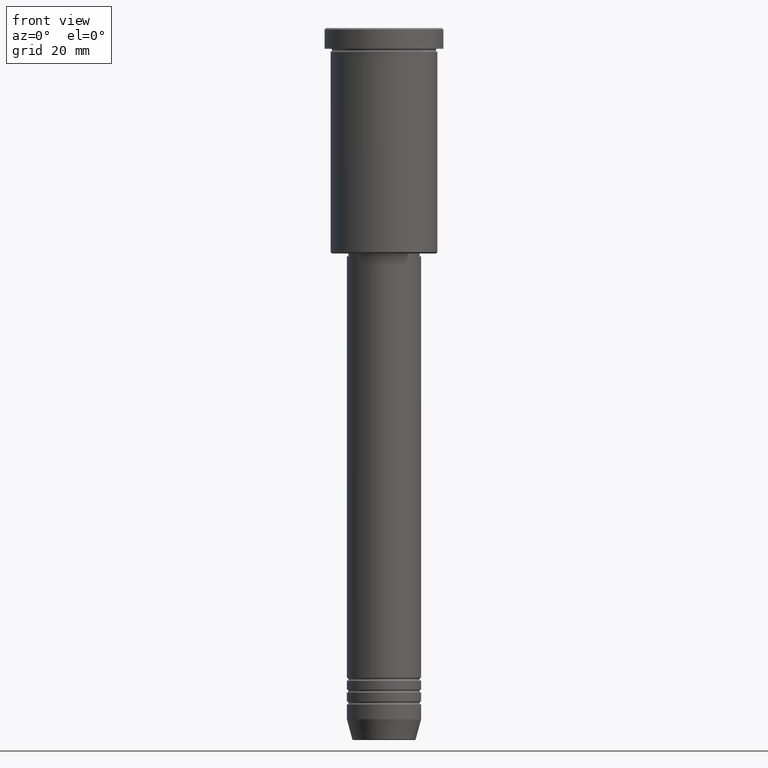
[diagram: clean part render]
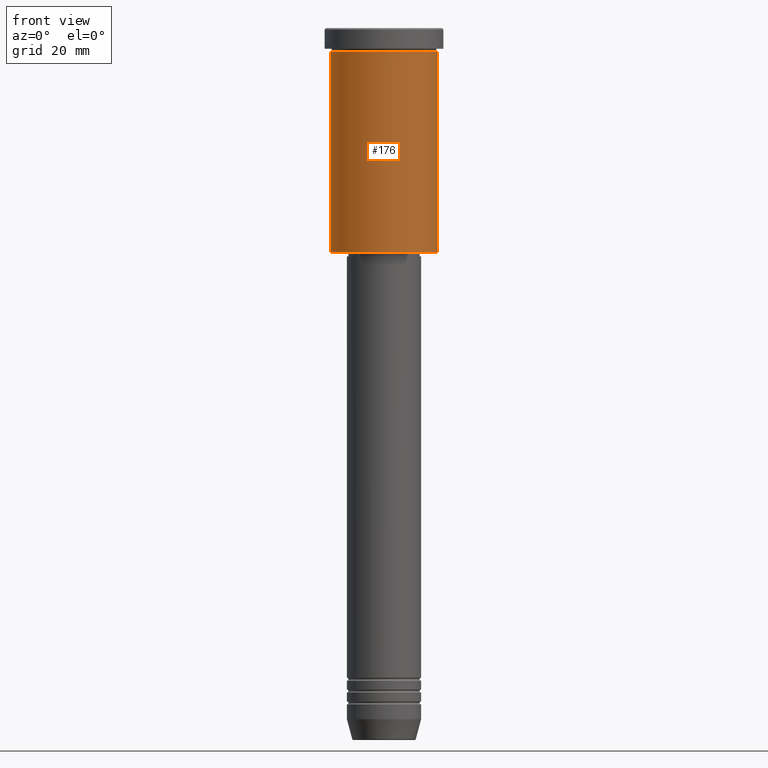
[diagram: same view with one face highlighted and labeled with its STEP entity id]
A machine part, front view. The second image highlights one B-rep face of the part: STEP entity #176.
In plain terms, the highlighted cylindrical surface (partial cylindrical patch) has radius 18 mm, axis along (-0, -0, 1).
Its self-contained STEP definition (entity closure, byte-faithful):
#44 = CARTESIAN_POINT ( 'NONE',  ( 0.000000000000000000, 0.000000000000000000, -7.999999999999996447 ) ) ;
#46 = EDGE_CURVE ( 'NONE', #174, #456, #858, .T. ) ;
#126 = ORIENTED_EDGE ( 'NONE', *, *, #46, .T. ) ;
#136 = DIRECTION ( 'NONE',  ( 1.000000000000000000, 0.000000000000000000, 0.000000000000000000 ) ) ;
#174 = VERTEX_POINT ( 'NONE', #1166 ) ;
#176 = ADVANCED_FACE ( 'NONE', ( #341 ), #712, .T. ) ;
#251 = CARTESIAN_POINT ( 'NONE',  ( -18.00000000000000000, 2.204364238465235428E-15, -7.999999999999996447 ) ) ;
#263 = DIRECTION ( 'NONE',  ( 1.000000000000000000, 0.000000000000000000, 0.000000000000000000 ) ) ;
#275 = LINE ( 'NONE', #938, #1141 ) ;
#291 = EDGE_CURVE ( 'NONE', #495, #174, #519, .T. ) ;
#341 = FACE_OUTER_BOUND ( 'NONE', #412, .T. ) ;
#411 = CARTESIAN_POINT ( 'NONE',  ( 18.00000000000000000, 0.000000000000000000, 0.000000000000000000 ) ) ;
#412 = EDGE_LOOP ( 'NONE', ( #705, #1132, #126, #526 ) ) ;
#426 = AXIS2_PLACEMENT_3D ( 'NONE', #730, #1069, #263 ) ;
#456 = VERTEX_POINT ( 'NONE', #994 ) ;
#495 = VERTEX_POINT ( 'NONE', #814 ) ;
#519 = CIRCLE ( 'NONE', #862, 18.00000000000000000 ) ;
#520 = CARTESIAN_POINT ( 'NONE',  ( 0.000000000000000000, 0.000000000000000000, -75.49999999999997158 ) ) ;
#526 = ORIENTED_EDGE ( 'NONE', *, *, #894, .F. ) ;
#574 = VERTEX_POINT ( 'NONE', #251 ) ;
#613 = DIRECTION ( 'NONE',  ( -0.000000000000000000, -0.000000000000000000, 1.000000000000000000 ) ) ;
#668 = CIRCLE ( 'NONE', #800, 18.00000000000000000 ) ;
#705 = ORIENTED_EDGE ( 'NONE', *, *, #991, .F. ) ;
#712 = CYLINDRICAL_SURFACE ( 'NONE', #426, 18.00000000000000000 ) ;
#730 = CARTESIAN_POINT ( 'NONE',  ( 0.000000000000000000, 0.000000000000000000, 0.000000000000000000 ) ) ;
#759 = DIRECTION ( 'NONE',  ( -0.000000000000000000, -0.000000000000000000, 1.000000000000000000 ) ) ;
#762 = VECTOR ( 'NONE', #783, 1000.000000000000000 ) ;
#783 = DIRECTION ( 'NONE',  ( -0.000000000000000000, -0.000000000000000000, 1.000000000000000000 ) ) ;
#800 = AXIS2_PLACEMENT_3D ( 'NONE', #44, #844, #136 ) ;
#814 = CARTESIAN_POINT ( 'NONE',  ( -18.00000000000000000, 2.204364238465235428E-15, -75.49999999999997158 ) ) ;
#844 = DIRECTION ( 'NONE',  ( -0.000000000000000000, -0.000000000000000000, 1.000000000000000000 ) ) ;
#858 = LINE ( 'NONE', #411, #762 ) ;
#862 = AXIS2_PLACEMENT_3D ( 'NONE', #520, #613, #882 ) ;
#882 = DIRECTION ( 'NONE',  ( -1.000000000000000000, 0.000000000000000000, 0.000000000000000000 ) ) ;
#894 = EDGE_CURVE ( 'NONE', #574, #456, #668, .T. ) ;
#938 = CARTESIAN_POINT ( 'NONE',  ( -18.00000000000000000, 2.204364238465235428E-15, 0.000000000000000000 ) ) ;
#991 = EDGE_CURVE ( 'NONE', #495, #574, #275, .T. ) ;
#994 = CARTESIAN_POINT ( 'NONE',  ( 18.00000000000000000, 0.000000000000000000, -7.999999999999996447 ) ) ;
#1069 = DIRECTION ( 'NONE',  ( -0.000000000000000000, -0.000000000000000000, 1.000000000000000000 ) ) ;
#1132 = ORIENTED_EDGE ( 'NONE', *, *, #291, .T. ) ;
#1141 = VECTOR ( 'NONE', #759, 1000.000000000000000 ) ;
#1166 = CARTESIAN_POINT ( 'NONE',  ( 18.00000000000000000, 0.000000000000000000, -75.49999999999997158 ) ) ;